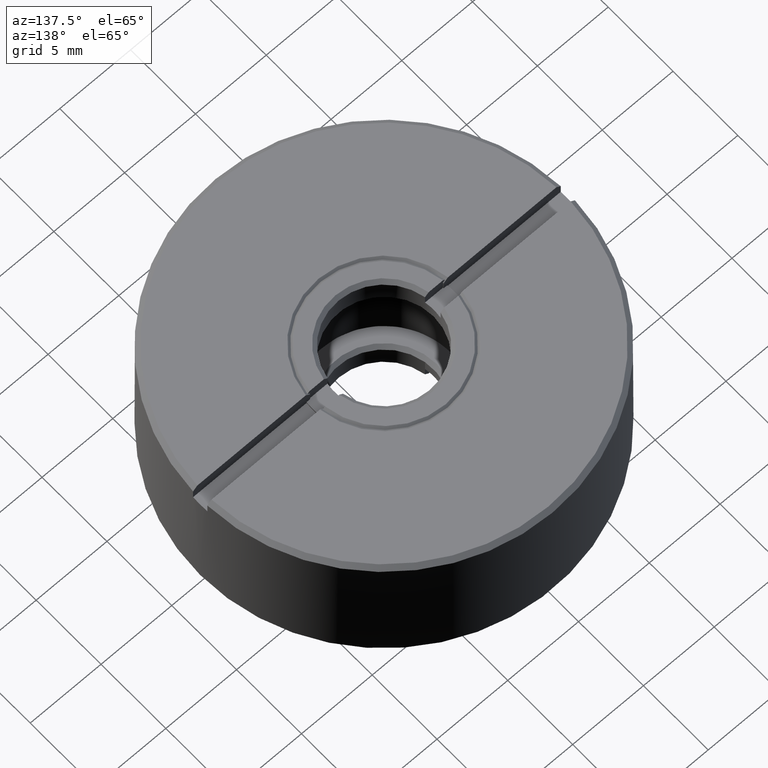
[diagram: clean part render]
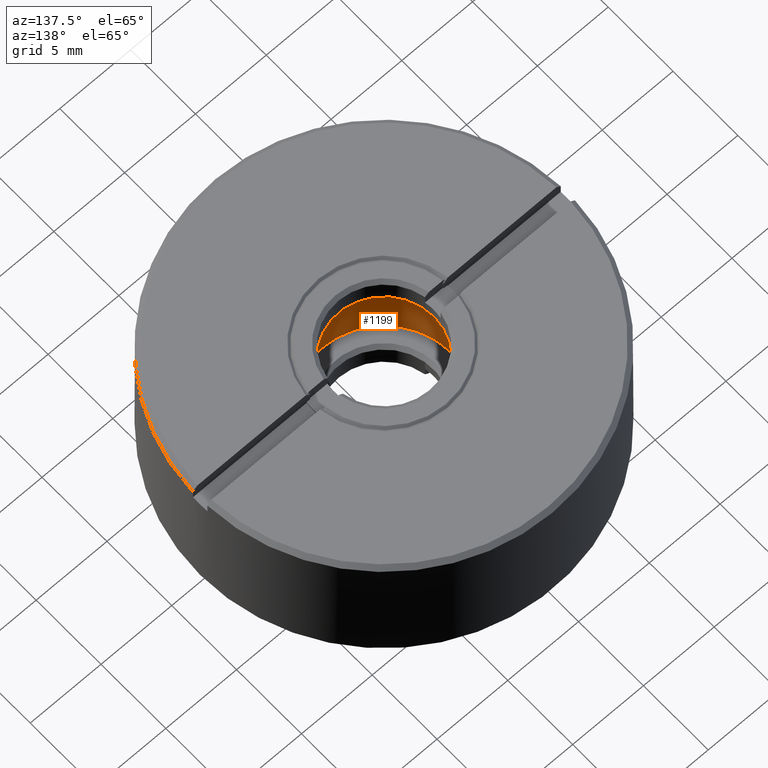
[diagram: same view with one face highlighted and labeled with its STEP entity id]
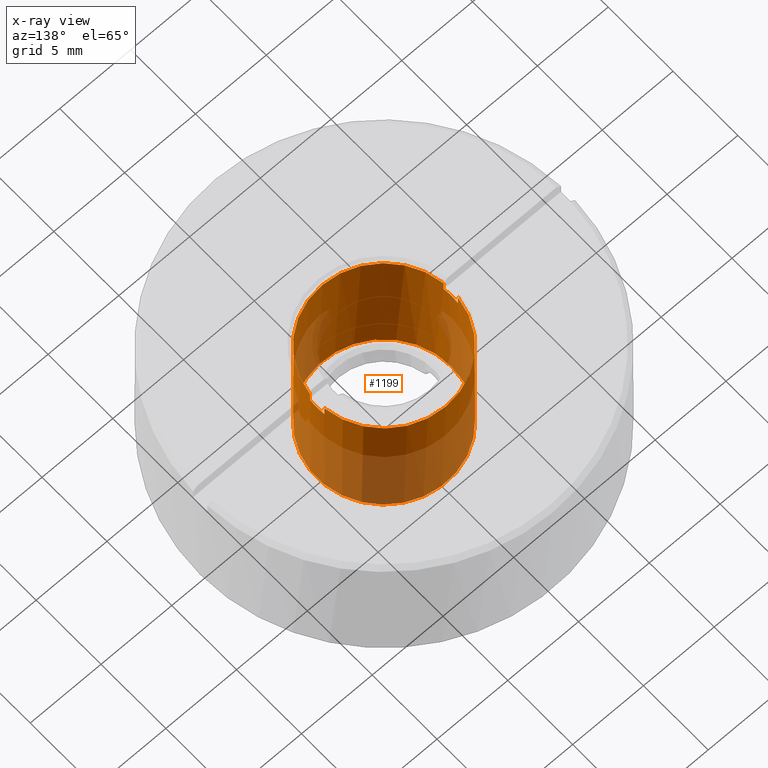
[diagram: x-ray of the same camera — body ghosted, the highlighted face saturated]
A machine part, auxiliary view. The second image highlights one B-rep face of the part: STEP entity #1199.
The next image is the same camera in x-ray: the body ghosted, the highlighted face saturated — about 41% of this face is hidden behind the body in this view.
In plain terms, the highlighted cylindrical surface (bore or boss wall) has radius 4.75 mm, axis along (-0, -0, 1).
Its self-contained STEP definition (entity closure, byte-faithful):
#33 = CIRCLE ( 'NONE', #989, 4.750000000001364242 ) ;
#55 = CARTESIAN_POINT ( 'NONE',  ( 4.718050444834180013, 0.5500000000000000444, 4.000000000000000000 ) ) ;
#61 = CIRCLE ( 'NONE', #446, 4.750000000000000000 ) ;
#69 = DIRECTION ( 'NONE',  ( 0.000000000000000000, 0.000000000000000000, -1.000000000000000000 ) ) ;
#80 = DIRECTION ( 'NONE',  ( 0.000000000000000000, 0.000000000000000000, -1.000000000000000000 ) ) ;
#93 = LINE ( 'NONE', #204, #318 ) ;
#120 = VERTEX_POINT ( 'NONE', #171 ) ;
#171 = CARTESIAN_POINT ( 'NONE',  ( 4.718050444830371504, 0.5500000000000000444, 4.700000000002493294 ) ) ;
#186 = CIRCLE ( 'NONE', #316, 4.750000000000000000 ) ;
#204 = CARTESIAN_POINT ( 'NONE',  ( 4.718050444834180901, 0.5500000000000000444, 4.000000000000000000 ) ) ;
#205 = LINE ( 'NONE', #948, #599 ) ;
#217 = ORIENTED_EDGE ( 'NONE', *, *, #724, .T. ) ;
#244 = FACE_OUTER_BOUND ( 'NONE', #1297, .T. ) ;
#263 = VECTOR ( 'NONE', #876, 1000.000000000000000 ) ;
#311 = CARTESIAN_POINT ( 'NONE',  ( 4.718050444834180901, -0.5500000000000000444, 4.000000000000000000 ) ) ;
#312 = EDGE_CURVE ( 'NONE', #1605, #325, #205, .T. ) ;
#316 = AXIS2_PLACEMENT_3D ( 'NONE', #883, #903, #1293 ) ;
#318 = VECTOR ( 'NONE', #735, 1000.000000000000000 ) ;
#321 = ORIENTED_EDGE ( 'NONE', *, *, #312, .T. ) ;
#325 = VERTEX_POINT ( 'NONE', #1329 ) ;
#329 = ORIENTED_EDGE ( 'NONE', *, *, #968, .T. ) ;
#356 = DIRECTION ( 'NONE',  ( 1.000000000000000000, 0.000000000000000000, 0.000000000000000000 ) ) ;
#367 = ORIENTED_EDGE ( 'NONE', *, *, #506, .F. ) ;
#382 = ORIENTED_EDGE ( 'NONE', *, *, #1006, .F. ) ;
#384 = LINE ( 'NONE', #1359, #263 ) ;
#392 = CIRCLE ( 'NONE', #1251, 4.750000000000000000 ) ;
#396 = CARTESIAN_POINT ( 'NONE',  ( 0.000000000000000000, 0.000000000000000000, 4.700000000000000178 ) ) ;
#411 = DIRECTION ( 'NONE',  ( -0.000000000000000000, -0.000000000000000000, -1.000000000000000000 ) ) ;
#427 = ORIENTED_EDGE ( 'NONE', *, *, #614, .T. ) ;
#428 = EDGE_CURVE ( 'NONE', #449, #1225, #1435, .T. ) ;
#446 = AXIS2_PLACEMENT_3D ( 'NONE', #1050, #80, #564 ) ;
#449 = VERTEX_POINT ( 'NONE', #484 ) ;
#450 = DIRECTION ( 'NONE',  ( 0.000000000000000000, -0.000000000000000000, -1.000000000000000000 ) ) ;
#474 = EDGE_CURVE ( 'NONE', #1249, #1225, #384, .T. ) ;
#484 = CARTESIAN_POINT ( 'NONE',  ( 4.718050444834180013, -0.5500000000000000444, 4.700000000006276046 ) ) ;
#486 = CARTESIAN_POINT ( 'NONE',  ( 0.000000000000000000, 0.000000000000000000, -5.000000000000000000 ) ) ;
#506 = EDGE_CURVE ( 'NONE', #1129, #691, #186, .T. ) ;
#550 = DIRECTION ( 'NONE',  ( -1.000000000000000000, 0.000000000000000000, 0.000000000000000000 ) ) ;
#564 = DIRECTION ( 'NONE',  ( 1.000000000000000000, 0.000000000000000000, 0.000000000000000000 ) ) ;
#575 = VECTOR ( 'NONE', #450, 1000.000000000000000 ) ;
#582 = EDGE_CURVE ( 'NONE', #1249, #325, #392, .T. ) ;
#599 = VECTOR ( 'NONE', #696, 1000.000000000000000 ) ;
#614 = EDGE_CURVE ( 'NONE', #1581, #1581, #33, .T. ) ;
#634 = LINE ( 'NONE', #311, #575 ) ;
#663 = CARTESIAN_POINT ( 'NONE',  ( 0.000000000000000000, 0.000000000000000000, -4.700000000013915269 ) ) ;
#691 = VERTEX_POINT ( 'NONE', #856 ) ;
#696 = DIRECTION ( 'NONE',  ( -0.000000000000000000, 0.000000000000000000, -1.000000000000000000 ) ) ;
#724 = EDGE_CURVE ( 'NONE', #1129, #120, #93, .T. ) ;
#735 = DIRECTION ( 'NONE',  ( 0.000000000000000000, -0.000000000000000000, 1.000000000000000000 ) ) ;
#852 = ORIENTED_EDGE ( 'NONE', *, *, #428, .F. ) ;
#856 = CARTESIAN_POINT ( 'NONE',  ( 4.718050444834180013, -0.5500000000000000444, 4.000000000000000888 ) ) ;
#876 = DIRECTION ( 'NONE',  ( -0.000000000000000000, 0.000000000000000000, 1.000000000000000000 ) ) ;
#883 = CARTESIAN_POINT ( 'NONE',  ( 0.000000000000000000, 0.000000000000000000, 4.000000000000000888 ) ) ;
#888 = AXIS2_PLACEMENT_3D ( 'NONE', #396, #1237, #1514 ) ;
#903 = DIRECTION ( 'NONE',  ( 0.000000000000000000, 0.000000000000000000, -1.000000000000000000 ) ) ;
#922 = DIRECTION ( 'NONE',  ( 1.000000000000000000, 6.217248937900876626E-15, 0.000000000000000000 ) ) ;
#948 = CARTESIAN_POINT ( 'NONE',  ( -4.718050444834180901, 0.5500000000000000444, 4.000000000000000000 ) ) ;
#968 = EDGE_CURVE ( 'NONE', #449, #691, #634, .T. ) ;
#989 = AXIS2_PLACEMENT_3D ( 'NONE', #663, #411, #550 ) ;
#1006 = EDGE_CURVE ( 'NONE', #1605, #120, #61, .T. ) ;
#1050 = CARTESIAN_POINT ( 'NONE',  ( 0.000000000000000000, 0.000000000000000000, 4.700000000000000178 ) ) ;
#1088 = CYLINDRICAL_SURFACE ( 'NONE', #1570, 4.750000000000000000 ) ;
#1118 = CARTESIAN_POINT ( 'NONE',  ( -4.718050444834180013, -0.5500000000000000444, 4.000000000000000000 ) ) ;
#1129 = VERTEX_POINT ( 'NONE', #55 ) ;
#1199 = ADVANCED_FACE ( 'NONE', ( #244, #1583 ), #1088, .F. ) ;
#1215 = CARTESIAN_POINT ( 'NONE',  ( -4.750000000001364242, 0.000000000000000000, -4.700000000013915269 ) ) ;
#1225 = VERTEX_POINT ( 'NONE', #1598 ) ;
#1237 = DIRECTION ( 'NONE',  ( 0.000000000000000000, 0.000000000000000000, -1.000000000000000000 ) ) ;
#1249 = VERTEX_POINT ( 'NONE', #1118 ) ;
#1251 = AXIS2_PLACEMENT_3D ( 'NONE', #1555, #69, #922 ) ;
#1260 = ORIENTED_EDGE ( 'NONE', *, *, #474, .T. ) ;
#1293 = DIRECTION ( 'NONE',  ( 1.000000000000000000, 0.000000000000000000, 0.000000000000000000 ) ) ;
#1297 = EDGE_LOOP ( 'NONE', ( #367, #217, #382, #321, #1544, #1260, #852, #329 ) ) ;
#1329 = CARTESIAN_POINT ( 'NONE',  ( -4.718050444834180013, 0.5500000000000000444, 4.000000000000000888 ) ) ;
#1345 = CARTESIAN_POINT ( 'NONE',  ( -4.718050444834180013, 0.5500000000000000444, 4.700000000006276046 ) ) ;
#1359 = CARTESIAN_POINT ( 'NONE',  ( -4.718050444834180901, -0.5500000000000000444, 4.000000000000000000 ) ) ;
#1435 = CIRCLE ( 'NONE', #888, 4.750000000000000000 ) ;
#1484 = DIRECTION ( 'NONE',  ( -0.000000000000000000, -0.000000000000000000, 1.000000000000000000 ) ) ;
#1514 = DIRECTION ( 'NONE',  ( 1.000000000000000000, 0.000000000000000000, 0.000000000000000000 ) ) ;
#1544 = ORIENTED_EDGE ( 'NONE', *, *, #582, .F. ) ;
#1555 = CARTESIAN_POINT ( 'NONE',  ( 0.000000000000000000, 0.000000000000000000, 4.000000000000000888 ) ) ;
#1570 = AXIS2_PLACEMENT_3D ( 'NONE', #486, #1484, #356 ) ;
#1581 = VERTEX_POINT ( 'NONE', #1215 ) ;
#1583 = FACE_OUTER_BOUND ( 'NONE', #1597, .T. ) ;
#1597 = EDGE_LOOP ( 'NONE', ( #427 ) ) ;
#1598 = CARTESIAN_POINT ( 'NONE',  ( -4.718050444830371504, -0.5500000000000000444, 4.700000000002493294 ) ) ;
#1605 = VERTEX_POINT ( 'NONE', #1345 ) ;